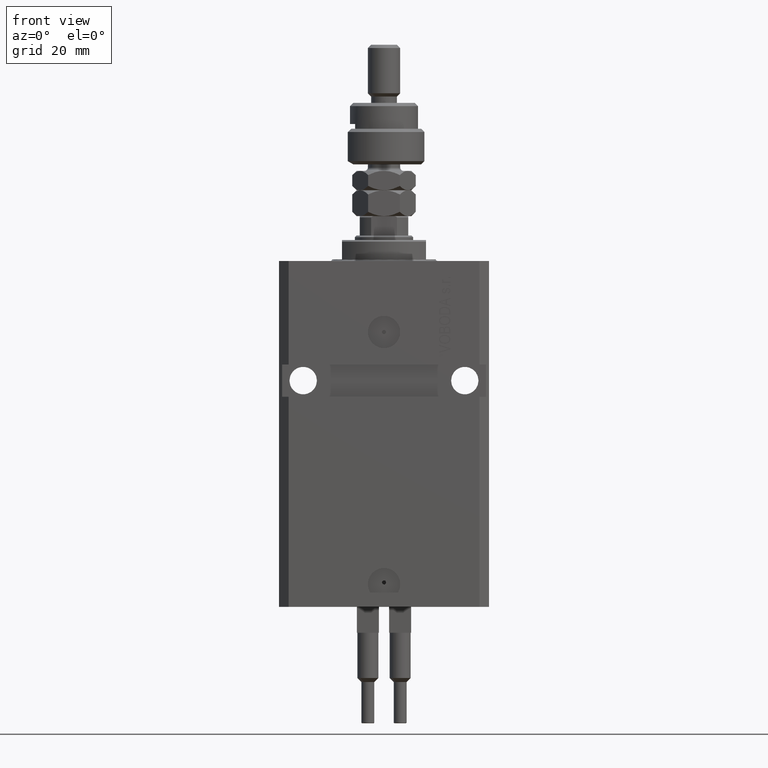
[diagram: clean part render]
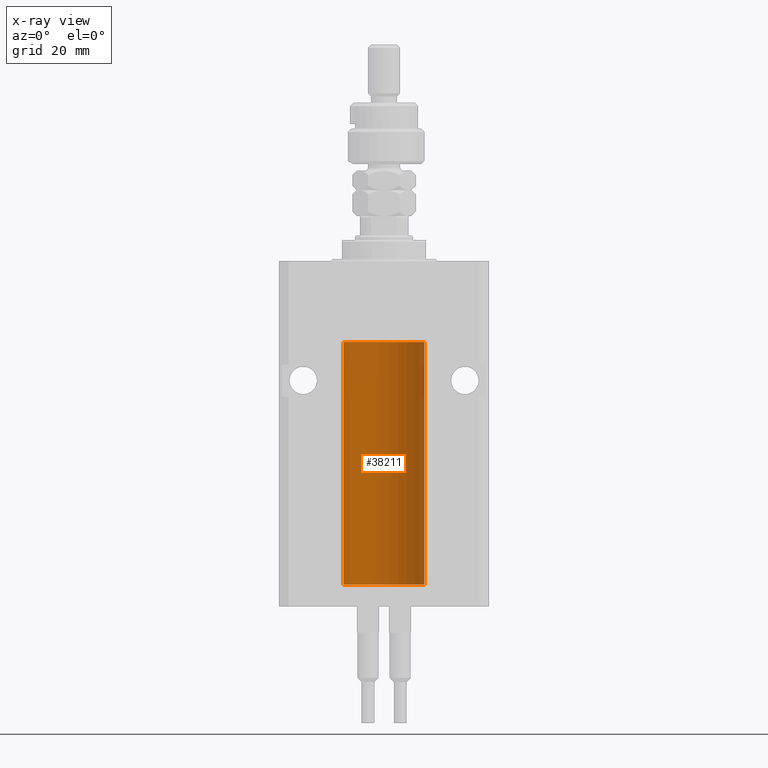
[diagram: x-ray — body ghosted, one internal face saturated and labeled with its STEP entity id]
A machine part, front view, then the same camera in x-ray: the body is ghosted and one INTERNAL B-rep face — a face not visible from any outside direction — is saturated and labeled: STEP entity #38211.
In plain terms, the highlighted cylindrical surface (partial cylindrical patch) has radius 12.5 mm, axis along (0, 0, 1).
Its self-contained STEP definition (entity closure, byte-faithful):
#316 = CARTESIAN_POINT ( 'NONE',  ( 12.50000000000000000, 0.000000000000000000, -25.10000000000000142 ) ) ;
#1738 = EDGE_CURVE ( 'NONE', #33609, #34044, #49040, .T. ) ;
#1758 = ORIENTED_EDGE ( 'NONE', *, *, #37932, .T. ) ;
#1769 = DIRECTION ( 'NONE',  ( -0.000000000000000000, -0.000000000000000000, 1.000000000000000000 ) ) ;
#1814 = VERTEX_POINT ( 'NONE', #316 ) ;
#3307 = CARTESIAN_POINT ( 'NONE',  ( 0.000000000000000000, 0.000000000000000000, -25.10000000000000142 ) ) ;
#3720 = VECTOR ( 'NONE', #1769, 1000.000000000000000 ) ;
#5930 = DIRECTION ( 'NONE',  ( 1.000000000000000000, 0.000000000000000000, 0.000000000000000000 ) ) ;
#6033 = CARTESIAN_POINT ( 'NONE',  ( -12.50000000000017941, 3.883381774819353300E-13, -95.62500000000359535 ) ) ;
#8472 = CARTESIAN_POINT ( 'NONE',  ( 12.50000000000000000, 0.000000000000000000, -100.0999999999999943 ) ) ;
#8880 = ORIENTED_EDGE ( 'NONE', *, *, #39141, .F. ) ;
#10528 = CARTESIAN_POINT ( 'NONE',  ( -12.50000000000017941, 3.883381774819353300E-13, -95.62500000000359535 ) ) ;
#11107 = CIRCLE ( 'NONE', #43110, 12.50000000000000000 ) ;
#11487 = CARTESIAN_POINT ( 'NONE',  ( -12.50000000000000000, 1.530808498934191521E-15, -100.0999999999999943 ) ) ;
#12566 = CARTESIAN_POINT ( 'NONE',  ( 12.50000000000000000, 0.000000000000000000, -100.0999999999999943 ) ) ;
#14643 = CARTESIAN_POINT ( 'NONE',  ( -12.49631005746706514, 0.3253680783018457756, -95.55856740465388555 ) ) ;
#15327 = DIRECTION ( 'NONE',  ( 1.000000000000000000, 0.000000000000000000, 0.000000000000000000 ) ) ;
#15387 = DIRECTION ( 'NONE',  ( 1.000000000000000000, 0.000000000000000000, 0.000000000000000000 ) ) ;
#15777 = VERTEX_POINT ( 'NONE', #12566 ) ;
#16271 = VECTOR ( 'NONE', #31099, 1000.000000000000000 ) ;
#17502 = CARTESIAN_POINT ( 'NONE',  ( -12.49915784441387068, 0.1636601911727894876, -94.39126818989429069 ) ) ;
#17780 = CIRCLE ( 'NONE', #45626, 12.50000000000000000 ) ;
#19224 = DIRECTION ( 'NONE',  ( 0.000000000000000000, 0.000000000000000000, 1.000000000000000000 ) ) ;
#20574 = B_SPLINE_CURVE_WITH_KNOTS ( 'NONE', 3,
 ( #41137, #36522, #17502, #33697, #34427, #30320, #38531, #45727, #25987, #42380, #46218, #14643, #49343, #10528 ),
 .UNSPECIFIED., .F., .F.,
 ( 4, 2, 2, 2, 2, 2, 4 ),
 ( 3.486178718436696769E-18, 0.0002442924852390829216, 0.0004885849704781623738, 0.0009771699409563507684, 0.001221462426195465403, 0.001465754911434580254, 0.001954339881912780900 ),
 .UNSPECIFIED. ) ;
#23313 = CARTESIAN_POINT ( 'NONE',  ( -12.50000000000000000, -1.522152011595579853E-14, -94.37500000000000000 ) ) ;
#24624 = VERTEX_POINT ( 'NONE', #11487 ) ;
#25987 = CARTESIAN_POINT ( 'NONE',  ( -12.48520330846397997, 0.6088355886774070580, -95.16325431852561678 ) ) ;
#26239 = CARTESIAN_POINT ( 'NONE',  ( -12.50000000000000000, 1.530808498934191521E-15, -25.10000000000000142 ) ) ;
#27146 = CYLINDRICAL_SURFACE ( 'NONE', #48140, 12.50000000000000000 ) ;
#29563 = CARTESIAN_POINT ( 'NONE',  ( -12.50000000000000000, 1.530808498934191521E-15, -100.0999999999999943 ) ) ;
#30239 = FACE_OUTER_BOUND ( 'NONE', #39967, .T. ) ;
#30320 = CARTESIAN_POINT ( 'NONE',  ( -12.48810268015257741, 0.5573155909661239304, -94.67347410093871929 ) ) ;
#31099 = DIRECTION ( 'NONE',  ( -0.000000000000000000, -0.000000000000000000, 1.000000000000000000 ) ) ;
#31796 = ORIENTED_EDGE ( 'NONE', *, *, #48913, .F. ) ;
#33609 = VERTEX_POINT ( 'NONE', #23313 ) ;
#33697 = CARTESIAN_POINT ( 'NONE',  ( -12.49625855304194033, 0.3150454781037993479, -94.45402800297488000 ) ) ;
#34044 = VERTEX_POINT ( 'NONE', #26239 ) ;
#34288 = ORIENTED_EDGE ( 'NONE', *, *, #45568, .T. ) ;
#34427 = CARTESIAN_POINT ( 'NONE',  ( -12.49422197749723829, 0.3843754434364257122, -94.50047099568094211 ) ) ;
#36522 = CARTESIAN_POINT ( 'NONE',  ( -12.50000000000000000, 0.08260426088727994276, -94.37499999999998579 ) ) ;
#37257 = LINE ( 'NONE', #29563, #50360 ) ;
#37932 = EDGE_CURVE ( 'NONE', #1814, #34044, #17780, .T. ) ;
#38211 = ADVANCED_FACE ( 'NONE', ( #30239 ), #27146, .F. ) ;
#38531 = CARTESIAN_POINT ( 'NONE',  ( -12.48436813453758631, 0.6249418250771134886, -94.83668996798924411 ) ) ;
#38804 = LINE ( 'NONE', #8472, #16271 ) ;
#39141 = EDGE_CURVE ( 'NONE', #15777, #24624, #11107, .T. ) ;
#39927 = EDGE_CURVE ( 'NONE', #33609, #40816, #20574, .T. ) ;
#39967 = EDGE_LOOP ( 'NONE', ( #31796, #8880, #34288, #1758, #42234, #47839 ) ) ;
#40816 = VERTEX_POINT ( 'NONE', #6033 ) ;
#41128 = DIRECTION ( 'NONE',  ( 0.000000000000000000, 0.000000000000000000, 1.000000000000000000 ) ) ;
#41137 = CARTESIAN_POINT ( 'NONE',  ( -12.50000000000000000, -1.522152011595579853E-14, -94.37500000000000000 ) ) ;
#42234 = ORIENTED_EDGE ( 'NONE', *, *, #1738, .F. ) ;
#42380 = CARTESIAN_POINT ( 'NONE',  ( -12.48809959379011403, 0.5462151254764922026, -95.31461370481613926 ) ) ;
#42547 = DIRECTION ( 'NONE',  ( -0.000000000000000000, -0.000000000000000000, 1.000000000000000000 ) ) ;
#42551 = DIRECTION ( 'NONE',  ( -0.000000000000000000, -0.000000000000000000, 1.000000000000000000 ) ) ;
#43110 = AXIS2_PLACEMENT_3D ( 'NONE', #49089, #41128, #5930 ) ;
#43714 = CARTESIAN_POINT ( 'NONE',  ( -12.50000000000000000, 1.530808498934191521E-15, -100.0999999999999943 ) ) ;
#45568 = EDGE_CURVE ( 'NONE', #15777, #1814, #38804, .T. ) ;
#45626 = AXIS2_PLACEMENT_3D ( 'NONE', #3307, #19224, #15387 ) ;
#45727 = CARTESIAN_POINT ( 'NONE',  ( -12.48436376893640620, 0.6250290278979871994, -95.08132082824478459 ) ) ;
#45890 = CARTESIAN_POINT ( 'NONE',  ( 0.000000000000000000, 0.000000000000000000, -100.0999999999999943 ) ) ;
#46218 = CARTESIAN_POINT ( 'NONE',  ( -12.49011732893843529, 0.5003763274120199833, -95.38348111289285214 ) ) ;
#47839 = ORIENTED_EDGE ( 'NONE', *, *, #39927, .T. ) ;
#48140 = AXIS2_PLACEMENT_3D ( 'NONE', #45890, #42551, #15327 ) ;
#48913 = EDGE_CURVE ( 'NONE', #24624, #40816, #37257, .T. ) ;
#49040 = LINE ( 'NONE', #43714, #3720 ) ;
#49089 = CARTESIAN_POINT ( 'NONE',  ( 0.000000000000000000, 0.000000000000000000, -100.0999999999999943 ) ) ;
#49343 = CARTESIAN_POINT ( 'NONE',  ( -12.49999999999999112, 0.1631761135151224562, -95.62499999999980105 ) ) ;
#50360 = VECTOR ( 'NONE', #42547, 1000.000000000000000 ) ;